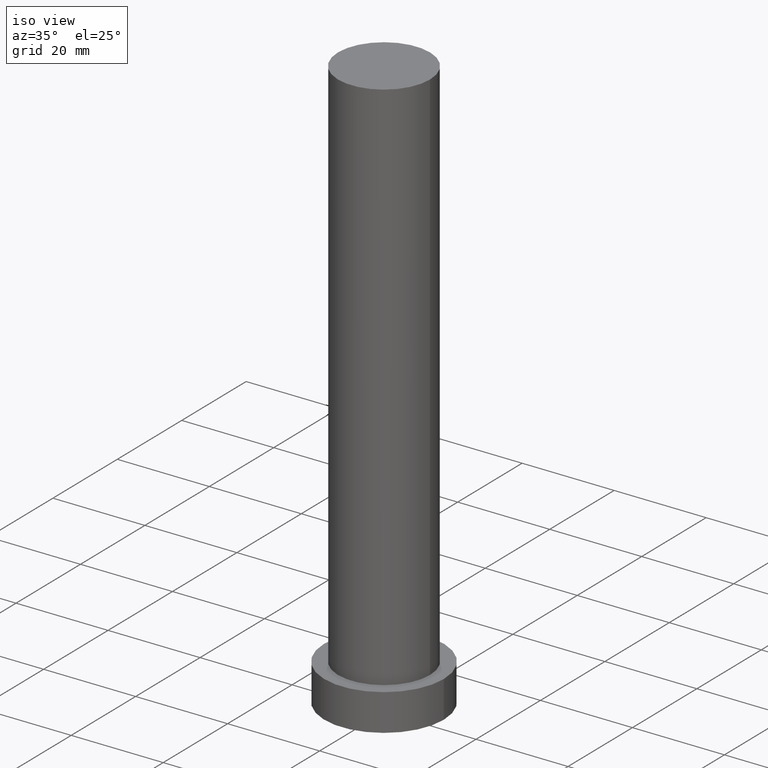
[diagram: clean part render]
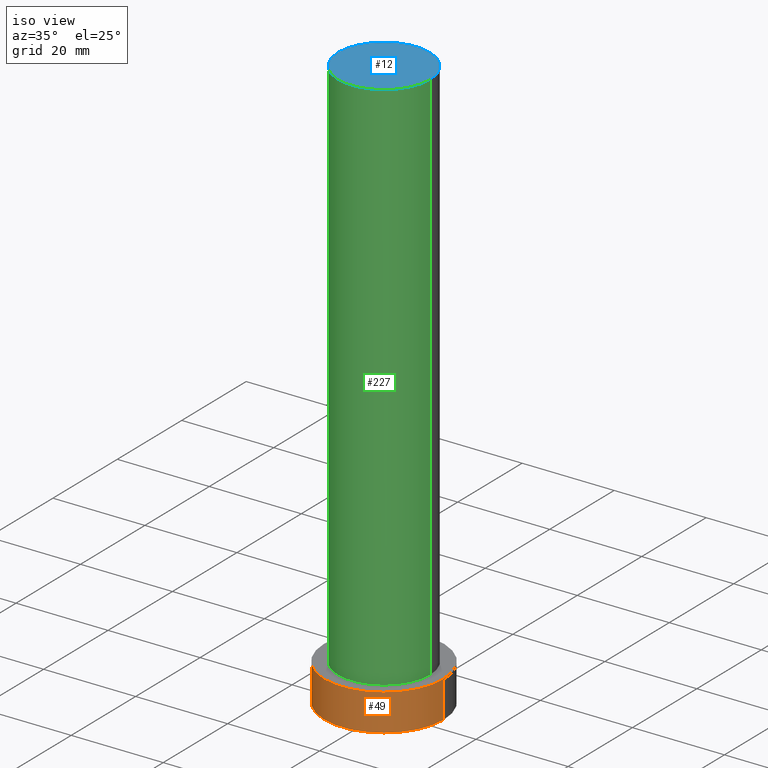
[diagram: same view with three faces highlighted in distinct colors, each labeled with its STEP entity id]
A machine part, iso view with three faces highlighted in distinct colors.
Their STEP definitions:

[orange] entity #49 — the highlighted cylindrical surface (partial cylindrical patch) has radius 13 mm, axis along (-0, -0, -1).
#17 = VECTOR ( 'NONE', #239, 1000.000000000000000 ) ;
#22 = ORIENTED_EDGE ( 'NONE', *, *, #67, .F. ) ;
#37 = ORIENTED_EDGE ( 'NONE', *, *, #116, .F. ) ;
#41 = CARTESIAN_POINT ( 'NONE',  ( 0.000000000000000000, 0.000000000000000000, 8.000000000000000000 ) ) ;
#48 = LINE ( 'NONE', #157, #17 ) ;
#49 = ADVANCED_FACE ( 'NONE', ( #214 ), #130, .T. ) ;
#54 = AXIS2_PLACEMENT_3D ( 'NONE', #41, #109, #111 ) ;
#61 = ORIENTED_EDGE ( 'NONE', *, *, #211, .T. ) ;
#67 = EDGE_CURVE ( 'NONE', #169, #126, #48, .T. ) ;
#75 = CARTESIAN_POINT ( 'NONE',  ( -13.00000000000000178, 0.000000000000000000, 8.000000000000000000 ) ) ;
#81 = CIRCLE ( 'NONE', #140, 13.00000000000000178 ) ;
#83 = VERTEX_POINT ( 'NONE', #119 ) ;
#86 = CARTESIAN_POINT ( 'NONE',  ( 13.00000000000000178, 1.592040838891559293E-15, 8.000000000000000000 ) ) ;
#89 = DIRECTION ( 'NONE',  ( -0.000000000000000000, -0.000000000000000000, -1.000000000000000000 ) ) ;
#94 = DIRECTION ( 'NONE',  ( 1.000000000000000000, 0.000000000000000000, 0.000000000000000000 ) ) ;
#100 = DIRECTION ( 'NONE',  ( 0.000000000000000000, 0.000000000000000000, 1.000000000000000000 ) ) ;
#109 = DIRECTION ( 'NONE',  ( -0.000000000000000000, -0.000000000000000000, -1.000000000000000000 ) ) ;
#111 = DIRECTION ( 'NONE',  ( -1.000000000000000000, 0.000000000000000000, 0.000000000000000000 ) ) ;
#116 = EDGE_CURVE ( 'NONE', #216, #169, #81, .T. ) ;
#119 = CARTESIAN_POINT ( 'NONE',  ( -13.00000000000000178, 0.000000000000000000, 0.000000000000000000 ) ) ;
#124 = DIRECTION ( 'NONE',  ( 1.000000000000000000, 0.000000000000000000, 0.000000000000000000 ) ) ;
#126 = VERTEX_POINT ( 'NONE', #218 ) ;
#130 = CYLINDRICAL_SURFACE ( 'NONE', #54, 13.00000000000000178 ) ;
#140 = AXIS2_PLACEMENT_3D ( 'NONE', #178, #156, #94 ) ;
#142 = ORIENTED_EDGE ( 'NONE', *, *, #150, .T. ) ;
#150 = EDGE_CURVE ( 'NONE', #83, #126, #189, .T. ) ;
#156 = DIRECTION ( 'NONE',  ( 0.000000000000000000, 0.000000000000000000, 1.000000000000000000 ) ) ;
#157 = CARTESIAN_POINT ( 'NONE',  ( 13.00000000000000178, 1.592040838891559293E-15, 8.000000000000000000 ) ) ;
#163 = LINE ( 'NONE', #215, #197 ) ;
#169 = VERTEX_POINT ( 'NONE', #86 ) ;
#178 = CARTESIAN_POINT ( 'NONE',  ( 0.000000000000000000, 0.000000000000000000, 8.000000000000000000 ) ) ;
#182 = EDGE_LOOP ( 'NONE', ( #22, #37, #61, #142 ) ) ;
#189 = CIRCLE ( 'NONE', #224, 13.00000000000000178 ) ;
#197 = VECTOR ( 'NONE', #89, 1000.000000000000000 ) ;
#211 = EDGE_CURVE ( 'NONE', #216, #83, #163, .T. ) ;
#214 = FACE_OUTER_BOUND ( 'NONE', #182, .T. ) ;
#215 = CARTESIAN_POINT ( 'NONE',  ( -13.00000000000000178, 0.000000000000000000, 8.000000000000000000 ) ) ;
#216 = VERTEX_POINT ( 'NONE', #75 ) ;
#218 = CARTESIAN_POINT ( 'NONE',  ( 13.00000000000000178, 1.592040838891559293E-15, 0.000000000000000000 ) ) ;
#224 = AXIS2_PLACEMENT_3D ( 'NONE', #245, #100, #124 ) ;
#239 = DIRECTION ( 'NONE',  ( -0.000000000000000000, -0.000000000000000000, -1.000000000000000000 ) ) ;
#245 = CARTESIAN_POINT ( 'NONE',  ( 0.000000000000000000, 0.000000000000000000, 0.000000000000000000 ) ) ;

[blue] entity #12 — the highlighted planar face has unit normal (0, 0, 1).
#10 = CARTESIAN_POINT ( 'NONE',  ( -10.00000000000000000, 0.000000000000000000, 125.0000000000000000 ) ) ;
#12 = ADVANCED_FACE ( 'NONE', ( #186 ), #232, .T. ) ;
#13 = CARTESIAN_POINT ( 'NONE',  ( 0.000000000000000000, 0.000000000000000000, 125.0000000000000000 ) ) ;
#35 = CIRCLE ( 'NONE', #152, 10.00000000000000000 ) ;
#38 = DIRECTION ( 'NONE',  ( 1.000000000000000000, 0.000000000000000000, 0.000000000000000000 ) ) ;
#55 = CIRCLE ( 'NONE', #105, 10.00000000000000000 ) ;
#56 = ORIENTED_EDGE ( 'NONE', *, *, #134, .T. ) ;
#66 = DIRECTION ( 'NONE',  ( 1.000000000000000000, 0.000000000000000000, 0.000000000000000000 ) ) ;
#68 = CARTESIAN_POINT ( 'NONE',  ( 0.000000000000000000, 0.000000000000000000, 125.0000000000000000 ) ) ;
#76 = DIRECTION ( 'NONE',  ( 0.000000000000000000, 0.000000000000000000, 1.000000000000000000 ) ) ;
#92 = EDGE_LOOP ( 'NONE', ( #149, #56 ) ) ;
#105 = AXIS2_PLACEMENT_3D ( 'NONE', #68, #141, #38 ) ;
#120 = AXIS2_PLACEMENT_3D ( 'NONE', #13, #76, #230 ) ;
#134 = EDGE_CURVE ( 'NONE', #225, #183, #35, .T. ) ;
#141 = DIRECTION ( 'NONE',  ( 0.000000000000000000, 0.000000000000000000, 1.000000000000000000 ) ) ;
#149 = ORIENTED_EDGE ( 'NONE', *, *, #201, .T. ) ;
#152 = AXIS2_PLACEMENT_3D ( 'NONE', #160, #240, #66 ) ;
#160 = CARTESIAN_POINT ( 'NONE',  ( 0.000000000000000000, 0.000000000000000000, 125.0000000000000000 ) ) ;
#183 = VERTEX_POINT ( 'NONE', #10 ) ;
#186 = FACE_OUTER_BOUND ( 'NONE', #92, .T. ) ;
#201 = EDGE_CURVE ( 'NONE', #183, #225, #55, .T. ) ;
#210 = CARTESIAN_POINT ( 'NONE',  ( 10.00000000000000000, 1.224646799147353256E-15, 125.0000000000000000 ) ) ;
#225 = VERTEX_POINT ( 'NONE', #210 ) ;
#230 = DIRECTION ( 'NONE',  ( 1.000000000000000000, 0.000000000000000000, -0.000000000000000000 ) ) ;
#232 = PLANE ( 'NONE',  #120 ) ;
#240 = DIRECTION ( 'NONE',  ( 0.000000000000000000, 0.000000000000000000, 1.000000000000000000 ) ) ;

[green] entity #227 — the highlighted cylindrical surface (partial cylindrical patch) has radius 10 mm, axis along (-0, -0, -1).
#2 = EDGE_LOOP ( 'NONE', ( #15, #207, #255, #253 ) ) ;
#7 = CARTESIAN_POINT ( 'NONE',  ( 10.00000000000000000, 1.224646799147353256E-15, 8.000000000000000000 ) ) ;
#10 = CARTESIAN_POINT ( 'NONE',  ( -10.00000000000000000, 0.000000000000000000, 125.0000000000000000 ) ) ;
#14 = DIRECTION ( 'NONE',  ( -0.000000000000000000, -0.000000000000000000, -1.000000000000000000 ) ) ;
#15 = ORIENTED_EDGE ( 'NONE', *, *, #23, .F. ) ;
#23 = EDGE_CURVE ( 'NONE', #225, #88, #190, .T. ) ;
#25 = CARTESIAN_POINT ( 'NONE',  ( 0.000000000000000000, 0.000000000000000000, 8.000000000000000000 ) ) ;
#31 = CARTESIAN_POINT ( 'NONE',  ( -10.00000000000000000, 0.000000000000000000, 125.0000000000000000 ) ) ;
#38 = DIRECTION ( 'NONE',  ( 1.000000000000000000, 0.000000000000000000, 0.000000000000000000 ) ) ;
#46 = LINE ( 'NONE', #31, #129 ) ;
#55 = CIRCLE ( 'NONE', #105, 10.00000000000000000 ) ;
#58 = CARTESIAN_POINT ( 'NONE',  ( 10.00000000000000000, 1.224646799147353256E-15, 125.0000000000000000 ) ) ;
#62 = EDGE_CURVE ( 'NONE', #195, #88, #170, .T. ) ;
#68 = CARTESIAN_POINT ( 'NONE',  ( 0.000000000000000000, 0.000000000000000000, 125.0000000000000000 ) ) ;
#74 = VECTOR ( 'NONE', #133, 1000.000000000000000 ) ;
#79 = DIRECTION ( 'NONE',  ( 0.000000000000000000, 0.000000000000000000, 1.000000000000000000 ) ) ;
#88 = VERTEX_POINT ( 'NONE', #7 ) ;
#105 = AXIS2_PLACEMENT_3D ( 'NONE', #68, #141, #38 ) ;
#110 = FACE_OUTER_BOUND ( 'NONE', #2, .T. ) ;
#129 = VECTOR ( 'NONE', #244, 1000.000000000000000 ) ;
#133 = DIRECTION ( 'NONE',  ( -0.000000000000000000, -0.000000000000000000, -1.000000000000000000 ) ) ;
#138 = EDGE_CURVE ( 'NONE', #183, #195, #46, .T. ) ;
#141 = DIRECTION ( 'NONE',  ( 0.000000000000000000, 0.000000000000000000, 1.000000000000000000 ) ) ;
#155 = CYLINDRICAL_SURFACE ( 'NONE', #203, 10.00000000000000000 ) ;
#162 = CARTESIAN_POINT ( 'NONE',  ( -10.00000000000000000, 0.000000000000000000, 8.000000000000000000 ) ) ;
#167 = DIRECTION ( 'NONE',  ( -1.000000000000000000, 0.000000000000000000, 0.000000000000000000 ) ) ;
#170 = CIRCLE ( 'NONE', #184, 10.00000000000000000 ) ;
#183 = VERTEX_POINT ( 'NONE', #10 ) ;
#184 = AXIS2_PLACEMENT_3D ( 'NONE', #25, #79, #220 ) ;
#185 = CARTESIAN_POINT ( 'NONE',  ( 0.000000000000000000, 0.000000000000000000, 125.0000000000000000 ) ) ;
#190 = LINE ( 'NONE', #58, #74 ) ;
#195 = VERTEX_POINT ( 'NONE', #162 ) ;
#201 = EDGE_CURVE ( 'NONE', #183, #225, #55, .T. ) ;
#203 = AXIS2_PLACEMENT_3D ( 'NONE', #185, #14, #167 ) ;
#207 = ORIENTED_EDGE ( 'NONE', *, *, #201, .F. ) ;
#210 = CARTESIAN_POINT ( 'NONE',  ( 10.00000000000000000, 1.224646799147353256E-15, 125.0000000000000000 ) ) ;
#220 = DIRECTION ( 'NONE',  ( 1.000000000000000000, 0.000000000000000000, 0.000000000000000000 ) ) ;
#225 = VERTEX_POINT ( 'NONE', #210 ) ;
#227 = ADVANCED_FACE ( 'NONE', ( #110 ), #155, .T. ) ;
#244 = DIRECTION ( 'NONE',  ( -0.000000000000000000, -0.000000000000000000, -1.000000000000000000 ) ) ;
#253 = ORIENTED_EDGE ( 'NONE', *, *, #62, .T. ) ;
#255 = ORIENTED_EDGE ( 'NONE', *, *, #138, .T. ) ;